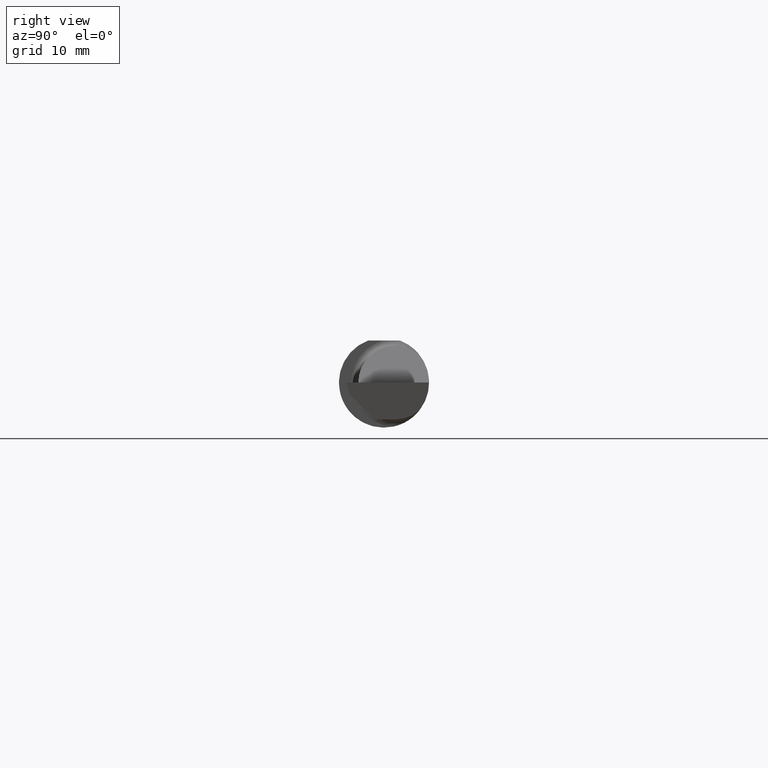
[diagram: clean part render]
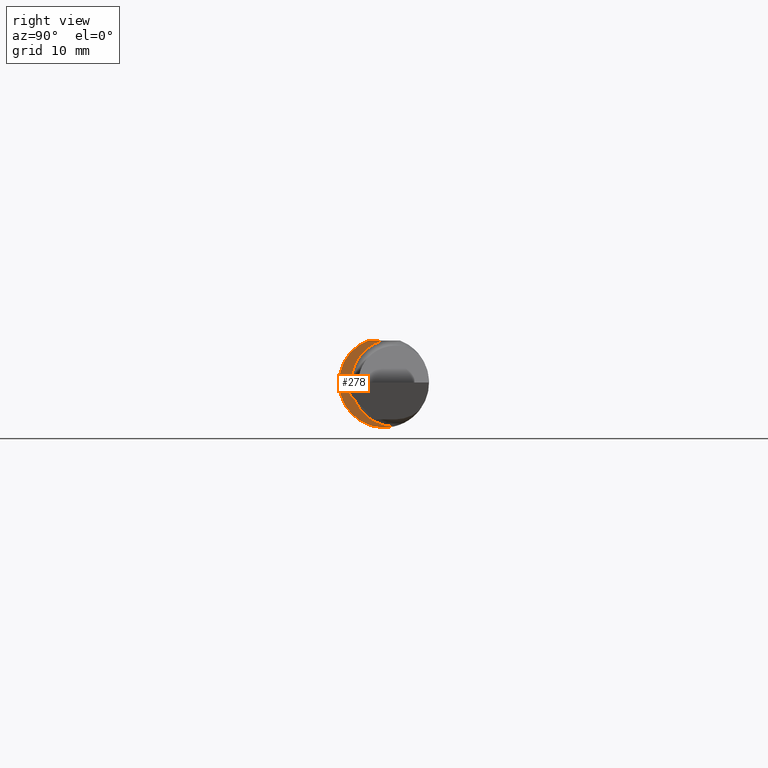
[diagram: same view with one face highlighted and labeled with its STEP entity id]
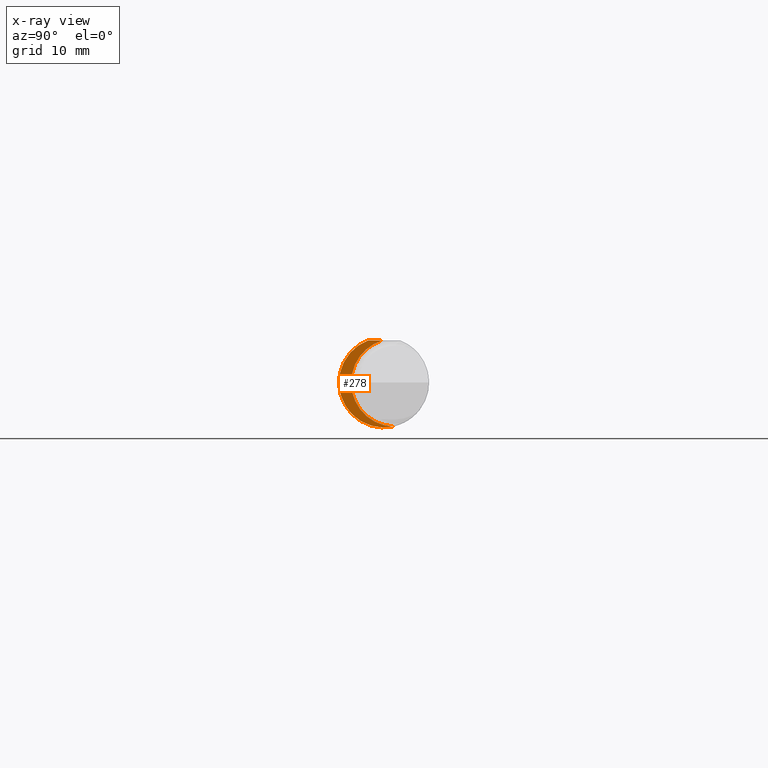
[diagram: x-ray of the same camera — body ghosted, the highlighted face saturated]
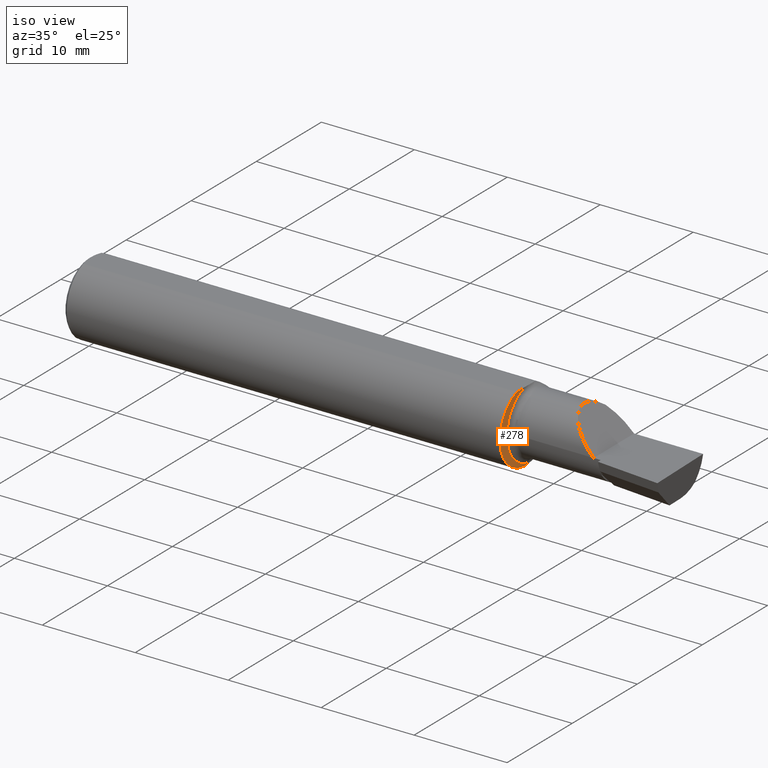
[diagram: same view with one face highlighted and labeled with its STEP entity id]
A machine part, right view. The second image highlights one B-rep face of the part: STEP entity #278.
The next image is the same camera in x-ray: the body ghosted, the highlighted face saturated — about 5% of this face is hidden behind the body in this view.
A second angle (iso view) of the same face is appended — the face is thin or edge-on in the first view.
In plain terms, the highlighted planar face has unit normal (-1, 0, 0).
Its self-contained STEP definition (entity closure, byte-faithful):
#27 = DIRECTION ( 'NONE',  ( -1.000000000000000000, 6.829619984160658046E-18, -0.000000000000000000 ) ) ;
#35 = AXIS2_PLACEMENT_3D ( 'NONE', #695, #156, #414 ) ;
#60 = LINE ( 'NONE', #279, #229 ) ;
#99 = VERTEX_POINT ( 'NONE', #330 ) ;
#100 = VERTEX_POINT ( 'NONE', #554 ) ;
#111 = AXIS2_PLACEMENT_3D ( 'NONE', #355, #27, #301 ) ;
#117 = DIRECTION ( 'NONE',  ( -1.000000000000000000, 6.829619984160658046E-18, -0.000000000000000000 ) ) ;
#121 = CIRCLE ( 'NONE', #111, 0.1529000000000000359 ) ;
#156 = DIRECTION ( 'NONE',  ( -1.000000000000000000, 6.829619984160658046E-18, 0.000000000000000000 ) ) ;
#161 = EDGE_CURVE ( 'NONE', #174, #693, #121, .T. ) ;
#174 = VERTEX_POINT ( 'NONE', #304 ) ;
#199 = FACE_OUTER_BOUND ( 'NONE', #236, .T. ) ;
#229 = VECTOR ( 'NONE', #555, 39.37007874015748143 ) ;
#236 = EDGE_LOOP ( 'NONE', ( #672, #328, #323, #420 ) ) ;
#278 = ADVANCED_FACE ( 'NONE', ( #199 ), #698, .F. ) ;
#279 = CARTESIAN_POINT ( 'NONE',  ( 1.850000000000000311, 0.2061000000000000332, 0.1460999999999999521 ) ) ;
#301 = DIRECTION ( 'NONE',  ( 0.000000000000000000, -1.000000000000000000, 0.000000000000000000 ) ) ;
#304 = CARTESIAN_POINT ( 'NONE',  ( 1.850000000000000311, 0.03217692307692287396, -0.1527476861405820951 ) ) ;
#323 = ORIENTED_EDGE ( 'NONE', *, *, #542, .F. ) ;
#328 = ORIENTED_EDGE ( 'NONE', *, *, #488, .T. ) ;
#330 = CARTESIAN_POINT ( 'NONE',  ( 1.850000000000000311, -0.006091019061449604553, 0.1460999999999999799 ) ) ;
#341 = DIRECTION ( 'NONE',  ( 0.000000000000000000, -1.000000000000000000, 0.000000000000000000 ) ) ;
#355 = CARTESIAN_POINT ( 'NONE',  ( 1.850000000000000311, 0.03899999999999998607, 0.000000000000000000 ) ) ;
#358 = AXIS2_PLACEMENT_3D ( 'NONE', #393, #117, #561 ) ;
#385 = CARTESIAN_POINT ( 'NONE',  ( 1.850000000000000311, 0.000000000000000000, 0.000000000000000000 ) ) ;
#393 = CARTESIAN_POINT ( 'NONE',  ( 1.850000000000000311, 0.03899999999999998607, 0.000000000000000000 ) ) ;
#412 = EDGE_CURVE ( 'NONE', #174, #100, #645, .T. ) ;
#414 = DIRECTION ( 'NONE',  ( -6.829619984160658046E-18, -1.000000000000000000, 0.000000000000000000 ) ) ;
#415 = AXIS2_PLACEMENT_3D ( 'NONE', #385, #495, #341 ) ;
#420 = ORIENTED_EDGE ( 'NONE', *, *, #412, .F. ) ;
#475 = CARTESIAN_POINT ( 'NONE',  ( 1.850000000000000311, -0.1139000000000000429, 0.000000000000000000 ) ) ;
#488 = EDGE_CURVE ( 'NONE', #693, #99, #578, .T. ) ;
#495 = DIRECTION ( 'NONE',  ( -1.000000000000000000, 6.829619984160658046E-18, -0.000000000000000000 ) ) ;
#542 = EDGE_CURVE ( 'NONE', #100, #99, #60, .T. ) ;
#554 = CARTESIAN_POINT ( 'NONE',  ( 1.850000000000000311, -0.05497272050753900657, 0.1461000000000000076 ) ) ;
#555 = DIRECTION ( 'NONE',  ( 6.829619984160658046E-18, 1.000000000000000000, -1.656870447394628111E-16 ) ) ;
#561 = DIRECTION ( 'NONE',  ( 0.000000000000000000, -1.000000000000000000, 0.000000000000000000 ) ) ;
#578 = CIRCLE ( 'NONE', #358, 0.1529000000000000359 ) ;
#645 = CIRCLE ( 'NONE', #415, 0.1560999999999999888 ) ;
#672 = ORIENTED_EDGE ( 'NONE', *, *, #161, .T. ) ;
#693 = VERTEX_POINT ( 'NONE', #475 ) ;
#695 = CARTESIAN_POINT ( 'NONE',  ( 1.850000000000000311, -0.1139000000000000429, 0.000000000000000000 ) ) ;
#698 = PLANE ( 'NONE',  #35 ) ;